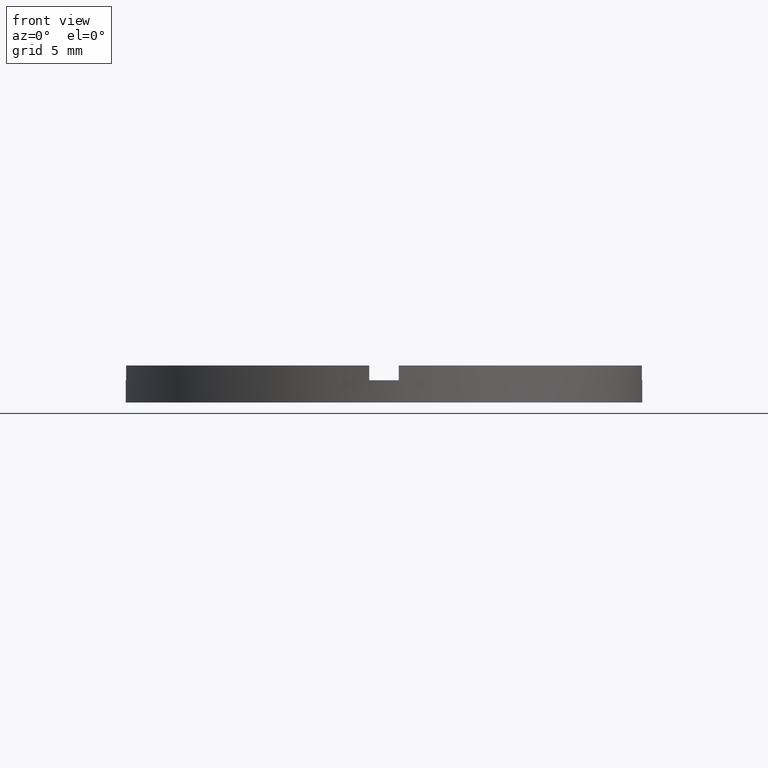
[diagram: clean part render]
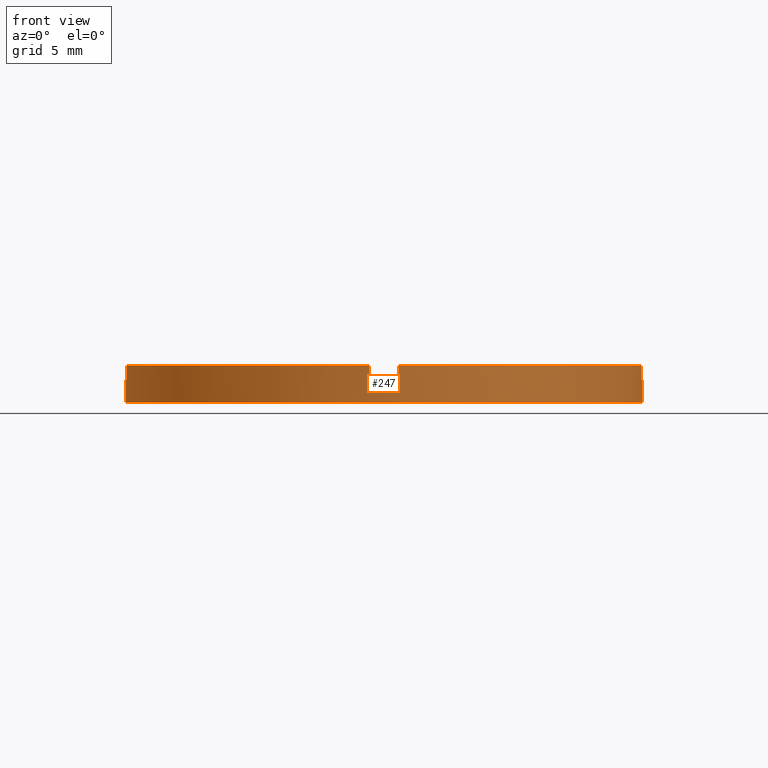
[diagram: same view with one face highlighted and labeled with its STEP entity id]
A machine part, front view. The second image highlights one B-rep face of the part: STEP entity #247.
In plain terms, the highlighted cylindrical surface (partial cylindrical patch) has radius 17.5 mm, axis along (-0, -0, -1).
Its self-contained STEP definition (entity closure, byte-faithful):
#2 = AXIS2_PLACEMENT_3D ( 'NONE', #632, #779, #99 ) ;
#4 = DIRECTION ( 'NONE',  ( -0.000000000000000000, -0.000000000000000000, -1.000000000000000000 ) ) ;
#18 = LINE ( 'NONE', #53, #542 ) ;
#26 = DIRECTION ( 'NONE',  ( -0.000000000000000000, 0.000000000000000000, 1.000000000000000000 ) ) ;
#32 = VECTOR ( 'NONE', #233, 1000.000000000000000 ) ;
#53 = CARTESIAN_POINT ( 'NONE',  ( 17.50000000000000355, 2.143131898507868643E-15, 2.500000000000000000 ) ) ;
#64 = EDGE_CURVE ( 'NONE', #169, #213, #137, .T. ) ;
#81 = EDGE_CURVE ( 'NONE', #735, #435, #147, .T. ) ;
#99 = DIRECTION ( 'NONE',  ( -1.000000000000000000, 0.000000000000000000, 0.000000000000000000 ) ) ;
#105 = CARTESIAN_POINT ( 'NONE',  ( 0.000000000000000000, 0.000000000000000000, 0.000000000000000000 ) ) ;
#109 = AXIS2_PLACEMENT_3D ( 'NONE', #492, #546, #585 ) ;
#111 = DIRECTION ( 'NONE',  ( 0.000000000000000000, 0.000000000000000000, 1.000000000000000000 ) ) ;
#115 = ORIENTED_EDGE ( 'NONE', *, *, #477, .F. ) ;
#124 = CARTESIAN_POINT ( 'NONE',  ( 17.47140520965614385, -1.000000000000158984, 2.500000000000000000 ) ) ;
#134 = VECTOR ( 'NONE', #738, 1000.000000000000000 ) ;
#135 = ORIENTED_EDGE ( 'NONE', *, *, #531, .T. ) ;
#137 = CIRCLE ( 'NONE', #140, 17.50000000000000355 ) ;
#140 = AXIS2_PLACEMENT_3D ( 'NONE', #105, #433, #304 ) ;
#145 = EDGE_CURVE ( 'NONE', #517, #497, #665, .T. ) ;
#147 = LINE ( 'NONE', #503, #669 ) ;
#152 = ORIENTED_EDGE ( 'NONE', *, *, #81, .T. ) ;
#167 = CARTESIAN_POINT ( 'NONE',  ( -17.47140520965615096, -1.000000000000023759, 1.500000000000000000 ) ) ;
#169 = VERTEX_POINT ( 'NONE', #639 ) ;
#173 = CYLINDRICAL_SURFACE ( 'NONE', #2, 17.50000000000000355 ) ;
#175 = DIRECTION ( 'NONE',  ( -0.000000000000000000, -0.000000000000000000, -1.000000000000000000 ) ) ;
#191 = VERTEX_POINT ( 'NONE', #290 ) ;
#198 = ORIENTED_EDGE ( 'NONE', *, *, #145, .T. ) ;
#206 = EDGE_CURVE ( 'NONE', #517, #529, #698, .T. ) ;
#208 = AXIS2_PLACEMENT_3D ( 'NONE', #457, #227, #532 ) ;
#213 = VERTEX_POINT ( 'NONE', #582 ) ;
#227 = DIRECTION ( 'NONE',  ( 0.000000000000000000, 0.000000000000000000, 1.000000000000000000 ) ) ;
#229 = EDGE_CURVE ( 'NONE', #511, #529, #438, .T. ) ;
#233 = DIRECTION ( 'NONE',  ( -0.000000000000000000, -0.000000000000000000, -1.000000000000000000 ) ) ;
#242 = ORIENTED_EDGE ( 'NONE', *, *, #229, .T. ) ;
#245 = CARTESIAN_POINT ( 'NONE',  ( 17.50000000000000355, 2.143131898507868643E-15, 1.500000000000000000 ) ) ;
#247 = ADVANCED_FACE ( 'NONE', ( #704 ), #173, .T. ) ;
#259 = CARTESIAN_POINT ( 'NONE',  ( 0.9999999999998369082, -17.47140520965615806, 1.500000000000000000 ) ) ;
#260 = ORIENTED_EDGE ( 'NONE', *, *, #269, .F. ) ;
#262 = ORIENTED_EDGE ( 'NONE', *, *, #206, .F. ) ;
#265 = DIRECTION ( 'NONE',  ( 1.000000000000000000, 0.000000000000000000, 0.000000000000000000 ) ) ;
#269 = EDGE_CURVE ( 'NONE', #691, #710, #372, .T. ) ;
#279 = VECTOR ( 'NONE', #4, 1000.000000000000000 ) ;
#290 = CARTESIAN_POINT ( 'NONE',  ( -17.47140520965615096, -1.000000000000023759, 2.500000000000000000 ) ) ;
#295 = CIRCLE ( 'NONE', #495, 17.50000000000000355 ) ;
#300 = CARTESIAN_POINT ( 'NONE',  ( 17.47140520965614385, -1.000000000000158984, 1.500000000000000000 ) ) ;
#304 = DIRECTION ( 'NONE',  ( 1.000000000000000000, 0.000000000000000000, 0.000000000000000000 ) ) ;
#310 = LINE ( 'NONE', #544, #279 ) ;
#315 = CARTESIAN_POINT ( 'NONE',  ( -17.50000000000000355, 0.000000000000000000, 1.500000000000000000 ) ) ;
#323 = AXIS2_PLACEMENT_3D ( 'NONE', #474, #460, #620 ) ;
#358 = AXIS2_PLACEMENT_3D ( 'NONE', #749, #26, #362 ) ;
#362 = DIRECTION ( 'NONE',  ( 1.000000000000000000, 0.000000000000000000, 0.000000000000000000 ) ) ;
#372 = CIRCLE ( 'NONE', #109, 17.50000000000000355 ) ;
#376 = EDGE_CURVE ( 'NONE', #695, #213, #18, .T. ) ;
#386 = CIRCLE ( 'NONE', #208, 17.50000000000000355 ) ;
#388 = EDGE_CURVE ( 'NONE', #191, #710, #310, .T. ) ;
#433 = DIRECTION ( 'NONE',  ( 0.000000000000000000, 0.000000000000000000, 1.000000000000000000 ) ) ;
#435 = VERTEX_POINT ( 'NONE', #499 ) ;
#438 = LINE ( 'NONE', #709, #701 ) ;
#441 = EDGE_CURVE ( 'NONE', #735, #497, #559, .T. ) ;
#457 = CARTESIAN_POINT ( 'NONE',  ( 0.000000000000000000, 0.000000000000000000, 1.500000000000000000 ) ) ;
#460 = DIRECTION ( 'NONE',  ( 0.000000000000000000, 0.000000000000000000, 1.000000000000000000 ) ) ;
#466 = ORIENTED_EDGE ( 'NONE', *, *, #64, .T. ) ;
#474 = CARTESIAN_POINT ( 'NONE',  ( 0.000000000000000000, 0.000000000000000000, 2.500000000000000000 ) ) ;
#477 = EDGE_CURVE ( 'NONE', #191, #435, #295, .T. ) ;
#478 = ORIENTED_EDGE ( 'NONE', *, *, #376, .F. ) ;
#492 = CARTESIAN_POINT ( 'NONE',  ( 0.000000000000000000, 0.000000000000000000, 1.500000000000000000 ) ) ;
#495 = AXIS2_PLACEMENT_3D ( 'NONE', #596, #111, #265 ) ;
#497 = VERTEX_POINT ( 'NONE', #259 ) ;
#499 = CARTESIAN_POINT ( 'NONE',  ( -1.000000000000162315, -17.47140520965614030, 2.500000000000000000 ) ) ;
#503 = CARTESIAN_POINT ( 'NONE',  ( -1.000000000000162759, -17.47140520965614030, 2.500000000000000000 ) ) ;
#505 = EDGE_LOOP ( 'NONE', ( #478, #765, #242, #262, #198, #507, #152, #115, #763, #260, #135, #466 ) ) ;
#507 = ORIENTED_EDGE ( 'NONE', *, *, #441, .F. ) ;
#511 = VERTEX_POINT ( 'NONE', #300 ) ;
#517 = VERTEX_POINT ( 'NONE', #694 ) ;
#529 = VERTEX_POINT ( 'NONE', #124 ) ;
#531 = EDGE_CURVE ( 'NONE', #691, #169, #564, .T. ) ;
#532 = DIRECTION ( 'NONE',  ( 1.000000000000000000, 0.000000000000000000, 0.000000000000000000 ) ) ;
#538 = DIRECTION ( 'NONE',  ( 0.000000000000000000, 0.000000000000000000, 1.000000000000000000 ) ) ;
#539 = CARTESIAN_POINT ( 'NONE',  ( -1.000000000000162315, -17.47140520965614030, 1.500000000000000000 ) ) ;
#542 = VECTOR ( 'NONE', #175, 1000.000000000000000 ) ;
#544 = CARTESIAN_POINT ( 'NONE',  ( -17.47140520965615096, -1.000000000000023759, 2.500000000000000000 ) ) ;
#546 = DIRECTION ( 'NONE',  ( 0.000000000000000000, 0.000000000000000000, 1.000000000000000000 ) ) ;
#559 = CIRCLE ( 'NONE', #358, 17.50000000000000355 ) ;
#564 = LINE ( 'NONE', #760, #32 ) ;
#582 = CARTESIAN_POINT ( 'NONE',  ( 17.50000000000000355, 2.143131898507868643E-15, 0.000000000000000000 ) ) ;
#585 = DIRECTION ( 'NONE',  ( 1.000000000000000000, 0.000000000000000000, 0.000000000000000000 ) ) ;
#596 = CARTESIAN_POINT ( 'NONE',  ( 0.000000000000000000, 0.000000000000000000, 2.500000000000000000 ) ) ;
#620 = DIRECTION ( 'NONE',  ( 1.000000000000000000, 0.000000000000000000, 0.000000000000000000 ) ) ;
#632 = CARTESIAN_POINT ( 'NONE',  ( 0.000000000000000000, 0.000000000000000000, 2.500000000000000000 ) ) ;
#639 = CARTESIAN_POINT ( 'NONE',  ( -17.50000000000000355, 0.000000000000000000, 0.000000000000000000 ) ) ;
#646 = EDGE_CURVE ( 'NONE', #511, #695, #386, .T. ) ;
#665 = LINE ( 'NONE', #717, #134 ) ;
#669 = VECTOR ( 'NONE', #707, 1000.000000000000000 ) ;
#691 = VERTEX_POINT ( 'NONE', #315 ) ;
#694 = CARTESIAN_POINT ( 'NONE',  ( 0.9999999999998369082, -17.47140520965615806, 2.500000000000000000 ) ) ;
#695 = VERTEX_POINT ( 'NONE', #245 ) ;
#698 = CIRCLE ( 'NONE', #323, 17.50000000000000355 ) ;
#701 = VECTOR ( 'NONE', #538, 1000.000000000000000 ) ;
#704 = FACE_OUTER_BOUND ( 'NONE', #505, .T. ) ;
#707 = DIRECTION ( 'NONE',  ( 0.000000000000000000, 0.000000000000000000, 1.000000000000000000 ) ) ;
#709 = CARTESIAN_POINT ( 'NONE',  ( 17.47140520965614385, -1.000000000000158984, 2.500000000000000000 ) ) ;
#710 = VERTEX_POINT ( 'NONE', #167 ) ;
#717 = CARTESIAN_POINT ( 'NONE',  ( 0.9999999999998373523, -17.47140520965616162, 2.500000000000000000 ) ) ;
#735 = VERTEX_POINT ( 'NONE', #539 ) ;
#738 = DIRECTION ( 'NONE',  ( -0.000000000000000000, -0.000000000000000000, -1.000000000000000000 ) ) ;
#749 = CARTESIAN_POINT ( 'NONE',  ( 0.000000000000000000, 0.000000000000000000, 1.500000000000000000 ) ) ;
#760 = CARTESIAN_POINT ( 'NONE',  ( -17.50000000000000355, 0.000000000000000000, 2.500000000000000000 ) ) ;
#763 = ORIENTED_EDGE ( 'NONE', *, *, #388, .T. ) ;
#765 = ORIENTED_EDGE ( 'NONE', *, *, #646, .F. ) ;
#779 = DIRECTION ( 'NONE',  ( -0.000000000000000000, -0.000000000000000000, -1.000000000000000000 ) ) ;